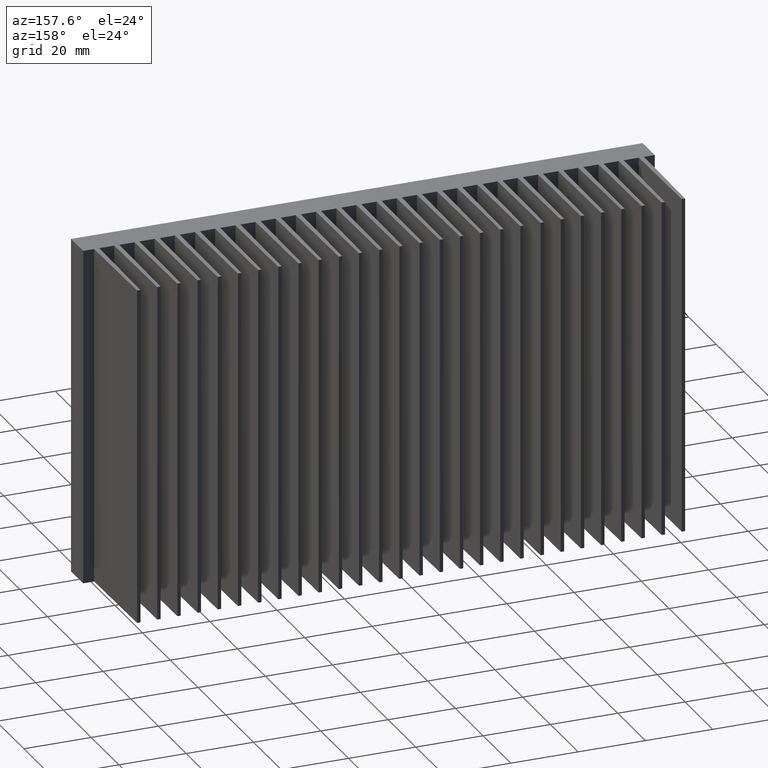
[diagram: clean part render]
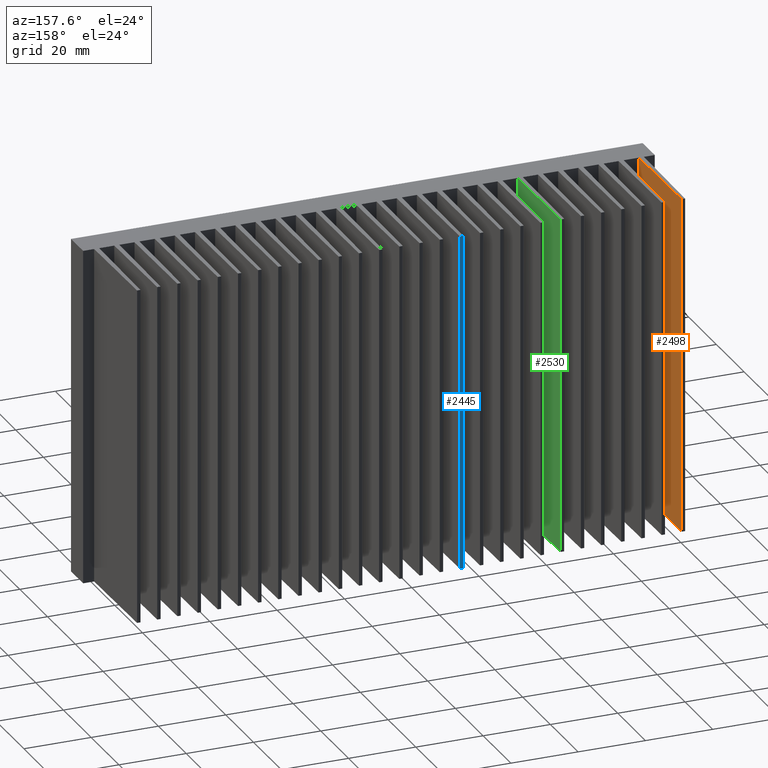
[diagram: same view with three faces highlighted in distinct colors, each labeled with its STEP entity id]
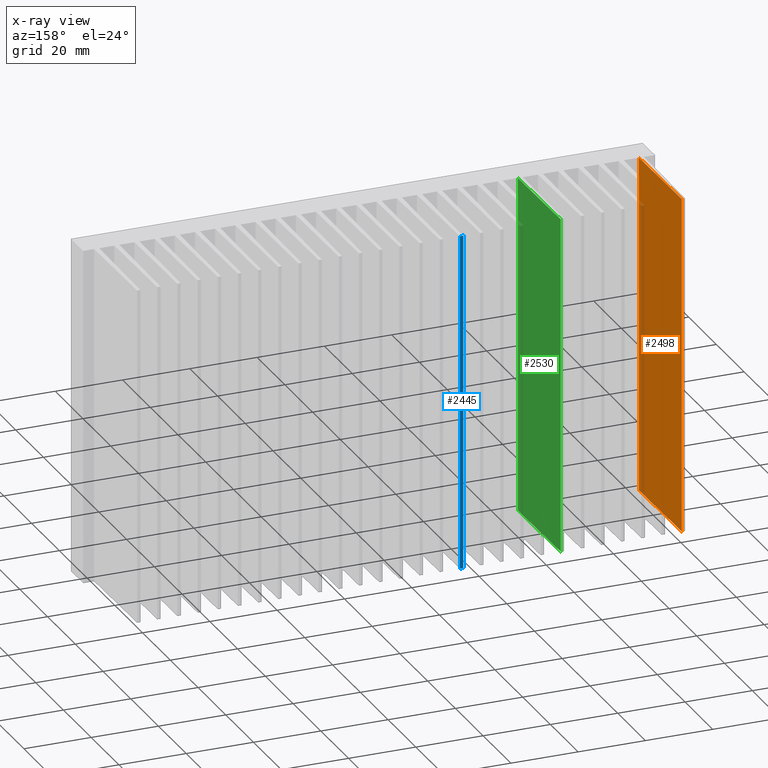
[diagram: x-ray of the same camera — body ghosted, the three highlighted faces saturated]
A machine part, auxiliary view with three faces highlighted in distinct colors.
The next image is the same camera in x-ray (body ghosted, the three faces saturated) — at least one of them is partly hidden behind the body in this view.
Their STEP definitions:

[orange] entity #2498 — the highlighted planar face has unit normal (-1, -0.0082, 0).
#16 = LINE ( 'NONE', #3351, #231 ) ;
#173 = ORIENTED_EDGE ( 'NONE', *, *, #661, .T. ) ;
#221 = ORIENTED_EDGE ( 'NONE', *, *, #365, .F. ) ;
#227 = VERTEX_POINT ( 'NONE', #1759 ) ;
#231 = VECTOR ( 'NONE', #2851, 1000.000000000000114 ) ;
#268 = ORIENTED_EDGE ( 'NONE', *, *, #1485, .F. ) ;
#343 = DIRECTION ( 'NONE',  ( 0.008223406144933271059, -0.9999661872240358518, 0.0000000000000000000 ) ) ;
#365 = EDGE_CURVE ( 'NONE', #227, #1804, #1634, .T. ) ;
#403 = DIRECTION ( 'NONE',  ( -0.9999661872240358518, -0.008223406144933271059, 0.0000000000000000000 ) ) ;
#416 = PLANE ( 'NONE',  #3529 ) ;
#420 = VERTEX_POINT ( 'NONE', #1034 ) ;
#428 = CARTESIAN_POINT ( 'NONE',  ( -80.19864000000097803, -10.81803199999960263, 100.0000000000000000 ) ) ;
#477 = ORIENTED_EDGE ( 'NONE', *, *, #2353, .T. ) ;
#513 = CARTESIAN_POINT ( 'NONE',  ( -80.44848000000092725, 19.56251200000004431, 100.0000000000000000 ) ) ;
#551 = VECTOR ( 'NONE', #3513, 1000.000000000000000 ) ;
#661 = EDGE_CURVE ( 'NONE', #2202, #1804, #16, .T. ) ;
#783 = DIRECTION ( 'NONE',  ( -0.008223406144933269324, 0.9999661872240358518, 0.0000000000000000000 ) ) ;
#797 = CARTESIAN_POINT ( 'NONE',  ( -80.19864000000097803, -10.81803199999960263, 100.0000000000000000 ) ) ;
#1034 = CARTESIAN_POINT ( 'NONE',  ( -80.19864000000097803, -10.81803199999960263, 100.0000000000000000 ) ) ;
#1360 = CARTESIAN_POINT ( 'NONE',  ( -80.44848000000092725, 19.56251200000004431, 0.0000000000000000000 ) ) ;
#1365 = DIRECTION ( 'NONE',  ( -0.0000000000000000000, -0.0000000000000000000, -1.000000000000000000 ) ) ;
#1424 = LINE ( 'NONE', #797, #1432 ) ;
#1432 = VECTOR ( 'NONE', #783, 1000.000000000000114 ) ;
#1485 = EDGE_CURVE ( 'NONE', #420, #227, #1424, .T. ) ;
#1634 = LINE ( 'NONE', #513, #2916 ) ;
#1759 = CARTESIAN_POINT ( 'NONE',  ( -80.44848000000092725, 19.56251200000004431, 100.0000000000000000 ) ) ;
#1804 = VERTEX_POINT ( 'NONE', #1360 ) ;
#2202 = VERTEX_POINT ( 'NONE', #2687 ) ;
#2353 = EDGE_CURVE ( 'NONE', #420, #2202, #2439, .T. ) ;
#2394 = FACE_OUTER_BOUND ( 'NONE', #2595, .T. ) ;
#2439 = LINE ( 'NONE', #3723, #551 ) ;
#2498 = ADVANCED_FACE ( 'NONE', ( #2394 ), #416, .F. ) ;
#2595 = EDGE_LOOP ( 'NONE', ( #173, #221, #268, #477 ) ) ;
#2687 = CARTESIAN_POINT ( 'NONE',  ( -80.19864000000097803, -10.81803199999960263, 0.0000000000000000000 ) ) ;
#2851 = DIRECTION ( 'NONE',  ( -0.008223406144933269324, 0.9999661872240358518, 0.0000000000000000000 ) ) ;
#2916 = VECTOR ( 'NONE', #1365, 1000.000000000000000 ) ;
#3351 = CARTESIAN_POINT ( 'NONE',  ( -80.19864000000097803, -10.81803199999960263, 0.0000000000000000000 ) ) ;
#3513 = DIRECTION ( 'NONE',  ( -0.0000000000000000000, -0.0000000000000000000, -1.000000000000000000 ) ) ;
#3529 = AXIS2_PLACEMENT_3D ( 'NONE', #428, #403, #343 ) ;
#3723 = CARTESIAN_POINT ( 'NONE',  ( -80.19864000000097803, -10.81803199999960263, 100.0000000000000000 ) ) ;

[blue] entity #2445 — the highlighted planar face has unit normal (0, -1, 0).
#222 = VERTEX_POINT ( 'NONE', #1644 ) ;
#327 = ORIENTED_EDGE ( 'NONE', *, *, #3637, .T. ) ;
#389 = EDGE_CURVE ( 'NONE', #3530, #394, #3612, .T. ) ;
#394 = VERTEX_POINT ( 'NONE', #964 ) ;
#530 = ORIENTED_EDGE ( 'NONE', *, *, #3325, .F. ) ;
#545 = DIRECTION ( 'NONE',  ( 0.0000000000000000000, -0.0000000000000000000, -1.000000000000000000 ) ) ;
#583 = ORIENTED_EDGE ( 'NONE', *, *, #1397, .F. ) ;
#594 = DIRECTION ( 'NONE',  ( 0.0000000000000000000, -1.000000000000000000, 0.0000000000000000000 ) ) ;
#622 = PLANE ( 'NONE',  #1528 ) ;
#912 = DIRECTION ( 'NONE',  ( -1.000000000000000000, 0.0000000000000000000, 0.0000000000000000000 ) ) ;
#932 = CARTESIAN_POINT ( 'NONE',  ( -14.49072000000070837, 19.56251200000005852, 100.0000000000000000 ) ) ;
#953 = VERTEX_POINT ( 'NONE', #2641 ) ;
#964 = CARTESIAN_POINT ( 'NONE',  ( -14.49072000000070837, 19.56251200000005852, 0.0000000000000000000 ) ) ;
#1054 = CARTESIAN_POINT ( 'NONE',  ( -14.49072000000070837, 19.56251200000005852, 100.0000000000000000 ) ) ;
#1229 = LINE ( 'NONE', #932, #1230 ) ;
#1230 = VECTOR ( 'NONE', #912, 1000.000000000000000 ) ;
#1336 = CARTESIAN_POINT ( 'NONE',  ( -14.49072000000070837, 19.56251200000005852, 100.0000000000000000 ) ) ;
#1397 = EDGE_CURVE ( 'NONE', #3530, #222, #1229, .T. ) ;
#1434 = CARTESIAN_POINT ( 'NONE',  ( -14.49072000000070837, 19.56251200000005852, 100.0000000000000000 ) ) ;
#1515 = EDGE_LOOP ( 'NONE', ( #327, #530, #583, #2040 ) ) ;
#1528 = AXIS2_PLACEMENT_3D ( 'NONE', #1336, #594, #545 ) ;
#1644 = CARTESIAN_POINT ( 'NONE',  ( -15.49008000000096175, 19.56251200000005852, 100.0000000000000000 ) ) ;
#1647 = DIRECTION ( 'NONE',  ( -1.000000000000000000, 0.0000000000000000000, 0.0000000000000000000 ) ) ;
#1695 = CARTESIAN_POINT ( 'NONE',  ( -14.49072000000070837, 19.56251200000005852, 0.0000000000000000000 ) ) ;
#2040 = ORIENTED_EDGE ( 'NONE', *, *, #389, .T. ) ;
#2156 = LINE ( 'NONE', #2446, #2313 ) ;
#2243 = FACE_OUTER_BOUND ( 'NONE', #1515, .T. ) ;
#2313 = VECTOR ( 'NONE', #2413, 1000.000000000000000 ) ;
#2413 = DIRECTION ( 'NONE',  ( -0.0000000000000000000, -0.0000000000000000000, -1.000000000000000000 ) ) ;
#2445 = ADVANCED_FACE ( 'NONE', ( #2243 ), #622, .F. ) ;
#2446 = CARTESIAN_POINT ( 'NONE',  ( -15.49008000000096175, 19.56251200000005852, 100.0000000000000000 ) ) ;
#2641 = CARTESIAN_POINT ( 'NONE',  ( -15.49008000000096175, 19.56251200000005852, 0.0000000000000000000 ) ) ;
#2941 = VECTOR ( 'NONE', #3777, 1000.000000000000000 ) ;
#3325 = EDGE_CURVE ( 'NONE', #222, #953, #2156, .T. ) ;
#3383 = VECTOR ( 'NONE', #1647, 1000.000000000000000 ) ;
#3530 = VERTEX_POINT ( 'NONE', #1434 ) ;
#3612 = LINE ( 'NONE', #1054, #2941 ) ;
#3637 = EDGE_CURVE ( 'NONE', #394, #953, #3692, .T. ) ;
#3692 = LINE ( 'NONE', #1695, #3383 ) ;
#3777 = DIRECTION ( 'NONE',  ( -0.0000000000000000000, -0.0000000000000000000, -1.000000000000000000 ) ) ;

[green] entity #2530 — the highlighted planar face has unit normal (-1, -0.0082, 0).
#14 = EDGE_LOOP ( 'NONE', ( #2536, #2440, #3494, #3071 ) ) ;
#134 = VERTEX_POINT ( 'NONE', #2036 ) ;
#151 = EDGE_CURVE ( 'NONE', #2096, #134, #3453, .T. ) ;
#225 = PLANE ( 'NONE',  #831 ) ;
#397 = DIRECTION ( 'NONE',  ( -0.008223406144888277536, 0.9999661872240361848, 0.0000000000000000000 ) ) ;
#607 = CARTESIAN_POINT ( 'NONE',  ( -44.47152000000052396, 19.56251200000005497, 100.0000000000000000 ) ) ;
#686 = EDGE_CURVE ( 'NONE', #134, #3402, #3733, .T. ) ;
#831 = AXIS2_PLACEMENT_3D ( 'NONE', #1788, #1039, #2528 ) ;
#852 = VECTOR ( 'NONE', #2513, 1000.000000000000227 ) ;
#989 = LINE ( 'NONE', #607, #1078 ) ;
#1039 = DIRECTION ( 'NONE',  ( -0.9999661872240362959, -0.008223406144888279271, 0.0000000000000000000 ) ) ;
#1078 = VECTOR ( 'NONE', #3707, 1000.000000000000000 ) ;
#1201 = CARTESIAN_POINT ( 'NONE',  ( -44.22168000000192478, -10.81803199999959197, 0.0000000000000000000 ) ) ;
#1275 = EDGE_CURVE ( 'NONE', #3814, #3402, #989, .T. ) ;
#1642 = LINE ( 'NONE', #2930, #1737 ) ;
#1737 = VECTOR ( 'NONE', #397, 1000.000000000000227 ) ;
#1788 = CARTESIAN_POINT ( 'NONE',  ( -44.22168000000192478, -10.81803199999959197, 100.0000000000000000 ) ) ;
#1909 = CARTESIAN_POINT ( 'NONE',  ( -44.22168000000192478, -10.81803199999959197, 100.0000000000000000 ) ) ;
#2036 = CARTESIAN_POINT ( 'NONE',  ( -44.22168000000192478, -10.81803199999959197, 0.0000000000000000000 ) ) ;
#2096 = VERTEX_POINT ( 'NONE', #3073 ) ;
#2440 = ORIENTED_EDGE ( 'NONE', *, *, #1275, .F. ) ;
#2513 = DIRECTION ( 'NONE',  ( -0.008223406144888277536, 0.9999661872240361848, 0.0000000000000000000 ) ) ;
#2528 = DIRECTION ( 'NONE',  ( 0.008223406144888277536, -0.9999661872240361848, 0.0000000000000000000 ) ) ;
#2530 = ADVANCED_FACE ( 'NONE', ( #2644 ), #225, .F. ) ;
#2536 = ORIENTED_EDGE ( 'NONE', *, *, #686, .T. ) ;
#2644 = FACE_OUTER_BOUND ( 'NONE', #14, .T. ) ;
#2930 = CARTESIAN_POINT ( 'NONE',  ( -44.22168000000192478, -10.81803199999959197, 100.0000000000000000 ) ) ;
#2934 = CARTESIAN_POINT ( 'NONE',  ( -44.47152000000052396, 19.56251200000005497, 0.0000000000000000000 ) ) ;
#3059 = DIRECTION ( 'NONE',  ( -0.0000000000000000000, -0.0000000000000000000, -1.000000000000000000 ) ) ;
#3071 = ORIENTED_EDGE ( 'NONE', *, *, #151, .T. ) ;
#3073 = CARTESIAN_POINT ( 'NONE',  ( -44.22168000000192478, -10.81803199999959197, 100.0000000000000000 ) ) ;
#3267 = EDGE_CURVE ( 'NONE', #2096, #3814, #1642, .T. ) ;
#3402 = VERTEX_POINT ( 'NONE', #2934 ) ;
#3453 = LINE ( 'NONE', #1909, #3495 ) ;
#3494 = ORIENTED_EDGE ( 'NONE', *, *, #3267, .F. ) ;
#3495 = VECTOR ( 'NONE', #3059, 1000.000000000000000 ) ;
#3707 = DIRECTION ( 'NONE',  ( -0.0000000000000000000, -0.0000000000000000000, -1.000000000000000000 ) ) ;
#3731 = CARTESIAN_POINT ( 'NONE',  ( -44.47152000000052396, 19.56251200000005497, 100.0000000000000000 ) ) ;
#3733 = LINE ( 'NONE', #1201, #852 ) ;
#3814 = VERTEX_POINT ( 'NONE', #3731 ) ;